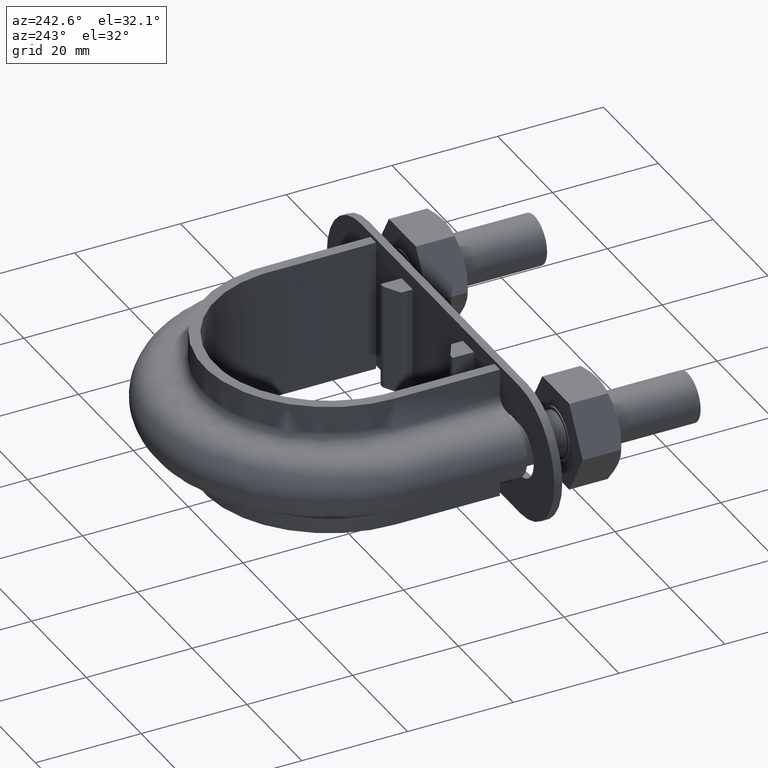
[diagram: clean part render]
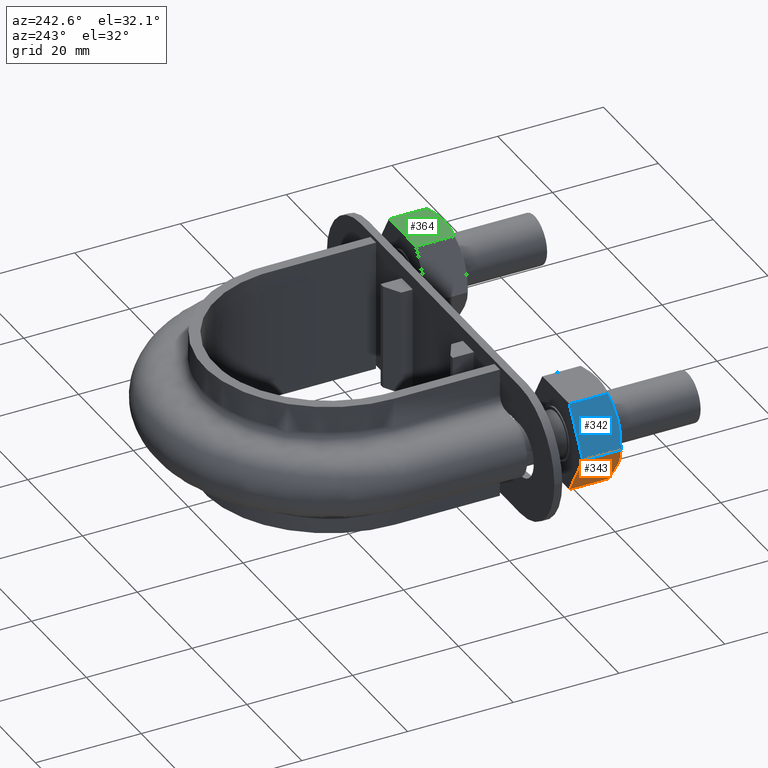
[diagram: same view with three faces highlighted in distinct colors, each labeled with its STEP entity id]
A machine part, auxiliary view with three faces highlighted in distinct colors.
Their STEP definitions:

[orange] entity #343 — the highlighted planar face has unit normal (0.866, -0, 0.5).
#343 = ADVANCED_FACE( '', ( #556 ), #557, .F. );
#556 = FACE_OUTER_BOUND( '', #1638, .T. );
#557 = PLANE( '', #1639 );
#1638 = EDGE_LOOP( '', ( #2277, #2278, #2279, #2280, #2281 ) );
#1639 = AXIS2_PLACEMENT_3D( '', #2282, #2283, #2284 );
#2277 = ORIENTED_EDGE( '', *, *, #2719, .F. );
#2278 = ORIENTED_EDGE( '', *, *, #2714, .F. );
#2279 = ORIENTED_EDGE( '', *, *, #2720, .F. );
#2280 = ORIENTED_EDGE( '', *, *, #2706, .F. );
#2281 = ORIENTED_EDGE( '', *, *, #2721, .F. );
#2282 = CARTESIAN_POINT( '', ( -32.9074772881147, 25.0000000000000, -8.49999999999621 ) );
#2283 = DIRECTION( '', ( 0.866025403784663, -2.42723201254793E-016, 0.499999999999611 ) );
#2284 = DIRECTION( '', ( 0.499999999999611, -6.94336247798279E-017, -0.866025403784664 ) );
#2706 = EDGE_CURVE( '', #3056, #3058, #3059, .T. );
#2714 = EDGE_CURVE( '', #3070, #3019, #3072, .T. );
#2719 = EDGE_CURVE( '', #3019, #3077, #3078, .T. );
#2720 = EDGE_CURVE( '', #3058, #3070, #3079, .F. );
#2721 = EDGE_CURVE( '', #3077, #3056, #3080, .T. );
#3019 = VERTEX_POINT( '', #3744 );
#3056 = VERTEX_POINT( '', #3799 );
#3058 = VERTEX_POINT( '', #3801 );
#3059 = LINE( '', #3802, #3803 );
#3070 = VERTEX_POINT( '', #3824 );
#3072 = B_SPLINE_CURVE_WITH_KNOTS( '', 3, ( #3826, #3827, #3828, #3829, #3830, #3831 ), .UNSPECIFIED., .F., .F., ( 4, 2, 4 ), ( 4.83064900407516E-007, 0.00246777364959034, 0.00493506423428027 ), .UNSPECIFIED. );
#3077 = VERTEX_POINT( '', #3848 );
#3078 = B_SPLINE_CURVE_WITH_KNOTS( '', 3, ( #3849, #3850, #3851, #3852, #3853, #3854, #3855, #3856 ), .UNSPECIFIED., .F., .F., ( 4, 2, 2, 4 ), ( 0.00493506423428027, 0.00616384870526231, 0.00739263317624436, 0.00985020211820844 ), .UNSPECIFIED. );
#3079 = LINE( '', #3857, #3858 );
#3080 = LINE( '', #3859, #3860 );
#3744 = CARTESIAN_POINT( '', ( -35.3612159321681, 17.0000000000004, -4.24999999999581 ) );
#3799 = CARTESIAN_POINT( '', ( -32.9224662525192, 25.0000000000000, -8.47403835209483 ) );
#3801 = CARTESIAN_POINT( '', ( -37.7999656118170, 25.0000000000000, -0.0259616478967784 ) );
#3802 = CARTESIAN_POINT( '', ( -37.8112159321656, 25.0000000000000, -0.00647552145164790 ) );
#3803 = VECTOR( '', #4305, 999.999999999960 );
#3824 = CARTESIAN_POINT( '', ( -37.7999656118170, 17.7505553499468, -0.0259616478967815 ) );
#3826 = CARTESIAN_POINT( '', ( -37.7999656118174, 17.7505553499465, -0.0259616478969237 ) );
#3827 = CARTESIAN_POINT( '', ( -37.4009132475369, 17.5212203171278, -0.717140617711911 ) );
#3828 = CARTESIAN_POINT( '', ( -36.9989787792953, 17.3324525365441, -1.41331153802019 ) );
#3829 = CARTESIAN_POINT( '', ( -36.1868332408955, 17.0714148540587, -2.81998887367063 ) );
#3830 = CARTESIAN_POINT( '', ( -35.7765614237888, 17.0000000000002, -3.53060050581371 ) );
#3831 = CARTESIAN_POINT( '', ( -35.3612159321683, 17.0000000000002, -4.24999999999588 ) );
#3848 = CARTESIAN_POINT( '', ( -32.9224662525192, 17.7505553499468, -8.47403835209483 ) );
#3849 = CARTESIAN_POINT( '', ( -35.3612159321683, 17.0000000000002, -4.24999999999588 ) );
#3850 = CARTESIAN_POINT( '', ( -35.1543614605618, 17.0000000000002, -4.60828245459150 ) );
#3851 = CARTESIAN_POINT( '', ( -34.9464724694549, 17.0177112081765, -4.96835674952323 ) );
#3852 = CARTESIAN_POINT( '', ( -34.5352159436579, 17.0863021936214, -5.68067394714868 ) );
#3853 = CARTESIAN_POINT( '', ( -34.3309547652777, 17.1371116504195, -6.03446468611739 ) );
#3854 = CARTESIAN_POINT( '', ( -33.7217813693363, 17.3331494013914, -7.08958395850828 ) );
#3855 = CARTESIAN_POINT( '', ( -33.3204658996256, 17.5218253127355, -7.78468274191133 ) );
#3856 = CARTESIAN_POINT( '', ( -32.9224662525191, 17.7505553499465, -8.47403835209489 ) );
#3857 = CARTESIAN_POINT( '', ( -37.7999656118170, 25.0000000000000, -0.0259616478967810 ) );
#3858 = VECTOR( '', #4320, 1000.00000000010 );
#3859 = CARTESIAN_POINT( '', ( -32.9224662525192, 25.0000000000000, -8.47403835209483 ) );
#3860 = VECTOR( '', #4321, 1000.00000000010 );
#4305 = DIRECTION( '', ( -0.499999999999577, 6.94336247798186E-017, 0.866025403784683 ) );
#4320 = DIRECTION( '', ( 2.44921270764475E-016, 1.00000000000000, 6.12303176911188E-017 ) );
#4321 = DIRECTION( '', ( 2.44921270764475E-016, 1.00000000000000, 6.12303176911188E-017 ) );

[blue] entity #342 — the highlighted planar face has unit normal (0.866, -0, -0.5).
#342 = ADVANCED_FACE( '', ( #554 ), #555, .F. );
#554 = FACE_OUTER_BOUND( '', #1636, .T. );
#555 = PLANE( '', #1637 );
#1636 = EDGE_LOOP( '', ( #2269, #2270, #2271, #2272, #2273 ) );
#1637 = AXIS2_PLACEMENT_3D( '', #2274, #2275, #2276 );
#2269 = ORIENTED_EDGE( '', *, *, #2712, .F. );
#2270 = ORIENTED_EDGE( '', *, *, #2717, .F. );
#2271 = ORIENTED_EDGE( '', *, *, #2711, .F. );
#2272 = ORIENTED_EDGE( '', *, *, #2708, .F. );
#2273 = ORIENTED_EDGE( '', *, *, #2718, .F. );
#2274 = CARTESIAN_POINT( '', ( -37.8149545762215, 25.0000000000000, 4.60213651726243E-012 ) );
#2275 = DIRECTION( '', ( 0.866025403784195, -1.81492883563558E-016, -0.500000000000423 ) );
#2276 = DIRECTION( '', ( -0.500000000000423, 1.75487645984627E-016, -0.866025403784195 ) );
#2708 = EDGE_CURVE( '', #3060, #3042, #3062, .T. );
#2711 = EDGE_CURVE( '', #3042, #3063, #3067, .F. );
#2712 = EDGE_CURVE( '', #3020, #3068, #3069, .T. );
#2717 = EDGE_CURVE( '', #3063, #3020, #3075, .T. );
#2718 = EDGE_CURVE( '', #3068, #3060, #3076, .T. );
#3020 = VERTEX_POINT( '', #3745 );
#3042 = VERTEX_POINT( '', #3782 );
#3060 = VERTEX_POINT( '', #3804 );
#3062 = LINE( '', #3806, #3807 );
#3063 = VERTEX_POINT( '', #3808 );
#3067 = LINE( '', #3813, #3814 );
#3068 = VERTEX_POINT( '', #3815 );
#3069 = B_SPLINE_CURVE_WITH_KNOTS( '', 3, ( #3816, #3817, #3818, #3819, #3820, #3821, #3822, #3823 ), .UNSPECIFIED., .F., .F., ( 4, 2, 2, 4 ), ( 0.00493529902949301, 0.00616408349151689, 0.00739286795354078, 0.00985043687758855 ), .UNSPECIFIED. );
#3075 = B_SPLINE_CURVE_WITH_KNOTS( '', 3, ( #3840, #3841, #3842, #3843, #3844, #3845 ), .UNSPECIFIED., .F., .F., ( 4, 2, 4 ), ( 7.17194508350507E-007, 0.00246800811200068, 0.00493529902949301 ), .UNSPECIFIED. );
#3076 = LINE( '', #3846, #3847 );
#3745 = CARTESIAN_POINT( '', ( -35.3612159321641, 17.0000000000004, 4.25000000000271 ) );
#3782 = CARTESIAN_POINT( '', ( -32.9224662525112, 25.0000000000000, 8.47403835209945 ) );
#3804 = CARTESIAN_POINT( '', ( -37.7999656118170, 25.0000000000000, 0.0259616479059692 ) );
#3806 = CARTESIAN_POINT( '', ( -37.8112159321656, 25.0000000000000, 0.00647552146084895 ) );
#3807 = VECTOR( '', #4309, 999.999999999960 );
#3808 = CARTESIAN_POINT( '', ( -32.9224662525112, 17.7505553499468, 8.47403835209945 ) );
#3813 = CARTESIAN_POINT( '', ( -32.9224662525112, 25.0000000000000, 8.47403835209945 ) );
#3814 = VECTOR( '', #4314, 1000.00000000010 );
#3815 = CARTESIAN_POINT( '', ( -37.7999656118170, 17.7505553499468, 0.0259616479059689 ) );
#3816 = CARTESIAN_POINT( '', ( -35.3612159321639, 16.9999999999999, 4.25000000000266 ) );
#3817 = CARTESIAN_POINT( '', ( -35.5680707460395, 16.9999999999999, 3.89171695258032 ) );
#3818 = CARTESIAN_POINT( '', ( -35.7759593429655, 17.0177112141219, 3.53164334039072 ) );
#3819 = CARTESIAN_POINT( '', ( -36.1872154329933, 17.0863020976798, 2.81932689754124 ) );
#3820 = CARTESIAN_POINT( '', ( -36.3914764911631, 17.1371114863338, 2.46553636678383 ) );
#3821 = CARTESIAN_POINT( '', ( -37.0006497745554, 17.3331491064654, 1.41041728933588 ) );
#3822 = CARTESIAN_POINT( '', ( -37.4019654977690, 17.5218250443848, 0.715318066854576 ) );
#3823 = CARTESIAN_POINT( '', ( -37.7999656118170, 17.7505553499463, 0.0259616479058919 ) );
#3840 = CARTESIAN_POINT( '', ( -32.9224662525109, 17.7505553499463, 8.47403835209933 ) );
#3841 = CARTESIAN_POINT( '', ( -33.3215180192832, 17.5212206605154, 7.78286041720033 ) );
#3842 = CARTESIAN_POINT( '', ( -33.7234521124762, 17.3324529479803, 7.08669014649664 ) );
#3843 = CARTESIAN_POINT( '', ( -34.5355975738453, 17.0714150925759, 5.68001294427048 ) );
#3844 = CARTESIAN_POINT( '', ( -34.9458696942450, 17.0000000000000, 4.96940078681001 ) );
#3845 = CARTESIAN_POINT( '', ( -35.3612159321639, 16.9999999999999, 4.25000000000266 ) );
#3846 = CARTESIAN_POINT( '', ( -37.7999656118170, 25.0000000000000, 0.0259616479059713 ) );
#3847 = VECTOR( '', #4319, 1000.00000000010 );
#4309 = DIRECTION( '', ( 0.500000000000389, -1.75487645984620E-016, 0.866025403784214 ) );
#4314 = DIRECTION( '', ( 2.44921270764475E-016, 1.00000000000000, 6.12303176911188E-017 ) );
#4319 = DIRECTION( '', ( 2.44921270764475E-016, 1.00000000000000, 6.12303176911188E-017 ) );

[green] entity #364 — the highlighted planar face has unit normal (-0, 0, -1).
#364 = ADVANCED_FACE( '', ( #603 ), #604, .F. );
#603 = FACE_OUTER_BOUND( '', #1685, .T. );
#604 = PLANE( '', #1686 );
#1685 = EDGE_LOOP( '', ( #2434, #2435, #2436, #2437, #2438 ) );
#1686 = AXIS2_PLACEMENT_3D( '', #2439, #2440, #2441 );
#2434 = ORIENTED_EDGE( '', *, *, #2767, .F. );
#2435 = ORIENTED_EDGE( '', *, *, #2734, .F. );
#2436 = ORIENTED_EDGE( '', *, *, #2768, .F. );
#2437 = ORIENTED_EDGE( '', *, *, #2751, .F. );
#2438 = ORIENTED_EDGE( '', *, *, #2762, .F. );
#2439 = CARTESIAN_POINT( '', ( 23.0925227118932, 25.0000000000000, 8.50000000000082 ) );
#2440 = DIRECTION( '', ( -4.68736160996741E-013, 6.12303176912337E-017, -1.00000000000000 ) );
#2441 = DIRECTION( '', ( -2.44921270764475E-016, -1.00000000000000, -6.12303176911189E-017 ) );
#2734 = EDGE_CURVE( '', #3097, #3100, #3101, .T. );
#2751 = EDGE_CURVE( '', #3129, #3131, #3132, .T. );
#2762 = EDGE_CURVE( '', #3150, #3129, #3152, .T. );
#2767 = EDGE_CURVE( '', #3100, #3150, #3159, .T. );
#2768 = EDGE_CURVE( '', #3131, #3097, #3160, .F. );
#3097 = VERTEX_POINT( '', #3896 );
#3100 = VERTEX_POINT( '', #3899 );
#3101 = B_SPLINE_CURVE_WITH_KNOTS( '', 3, ( #3900, #3901, #3902, #3903, #3904, #3905 ), .UNSPECIFIED., .F., .F., ( 4, 2, 4 ), ( 0.0107224888714694, 0.0132032657403424, 0.0156840426092154 ), .UNSPECIFIED. );
#3129 = VERTEX_POINT( '', #3955 );
#3131 = VERTEX_POINT( '', #3957 );
#3132 = LINE( '', #3958, #3959 );
#3150 = VERTEX_POINT( '', #3981 );
#3152 = LINE( '', #3983, #3984 );
#3159 = B_SPLINE_CURVE_WITH_KNOTS( '', 3, ( #4004, #4005, #4006, #4007, #4008, #4009 ), .UNSPECIFIED., .F., .F., ( 4, 2, 4 ), ( 0.0156840426092154, 0.0181633795370677, 0.0206427164649200 ), .UNSPECIFIED. );
#3160 = LINE( '', #4010, #4011 );
#3896 = CARTESIAN_POINT( '', ( 32.8774993593058, 17.7505553499468, 8.49999999999623 ) );
#3899 = CARTESIAN_POINT( '', ( 28.0000000000040, 17.0000000000004, 8.49999999999852 ) );
#3900 = CARTESIAN_POINT( '', ( 32.8774993593059, 17.7505553499465, 8.49999999999623 ) );
#3901 = CARTESIAN_POINT( '', ( 32.0828739329442, 17.5222200930415, 8.49999999999661 ) );
#3902 = CARTESIAN_POINT( '', ( 31.2812026223273, 17.3336547117174, 8.49999999999698 ) );
#3903 = CARTESIAN_POINT( '', ( 29.6573811694498, 17.0721149177819, 8.49999999999774 ) );
#3904 = CARTESIAN_POINT( '', ( 28.8350787536154, 17.0000000000002, 8.49999999999813 ) );
#3905 = CARTESIAN_POINT( '', ( 28.0000000000040, 17.0000000000002, 8.49999999999852 ) );
#3955 = CARTESIAN_POINT( '', ( 23.1225006407022, 25.0000000000000, 8.50000000000080 ) );
#3957 = CARTESIAN_POINT( '', ( 32.8774993593058, 25.0000000000000, 8.49999999999623 ) );
#3958 = CARTESIAN_POINT( '', ( 18.2000000000061, 25.0000000000000, 8.50000000000311 ) );
#3959 = VECTOR( '', #4374, 999.999999999927 );
#3981 = CARTESIAN_POINT( '', ( 23.1225006407022, 17.7505553499468, 8.50000000000080 ) );
#3983 = CARTESIAN_POINT( '', ( 23.1225006407022, 25.0000000000000, 8.50000000000080 ) );
#3984 = VECTOR( '', #4397, 1000.00000000010 );
#4004 = CARTESIAN_POINT( '', ( 28.0000000000040, 17.0000000000002, 8.49999999999852 ) );
#4005 = CARTESIAN_POINT( '', ( 27.1654059591324, 17.0000000000002, 8.49999999999891 ) );
#4006 = CARTESIAN_POINT( '', ( 26.3409017268028, 17.0723104611264, 8.49999999999930 ) );
#4007 = CARTESIAN_POINT( '', ( 24.7171925770451, 17.3339943747734, 8.50000000000006 ) );
#4008 = CARTESIAN_POINT( '', ( 23.9161421877776, 17.5225028103094, 8.50000000000043 ) );
#4009 = CARTESIAN_POINT( '', ( 23.1225006407021, 17.7505553499465, 8.50000000000080 ) );
#4010 = CARTESIAN_POINT( '', ( 32.8774993593058, 25.0000000000000, 8.49999999999623 ) );
#4011 = VECTOR( '', #4402, 1000.00000000010 );
#4374 = DIRECTION( '', ( 1.00000000000000, -2.44921270764447E-016, -4.68736160996741E-013 ) );
#4397 = DIRECTION( '', ( 2.44921270764475E-016, 1.00000000000000, 6.12303176911188E-017 ) );
#4402 = DIRECTION( '', ( 2.44921270764475E-016, 1.00000000000000, 6.12303176911188E-017 ) );